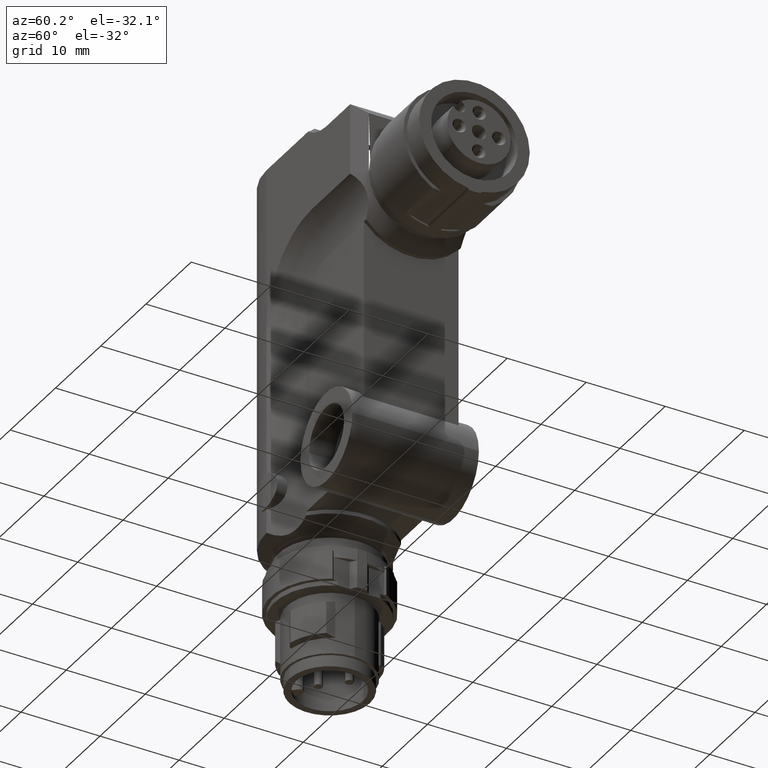
[diagram: clean part render]
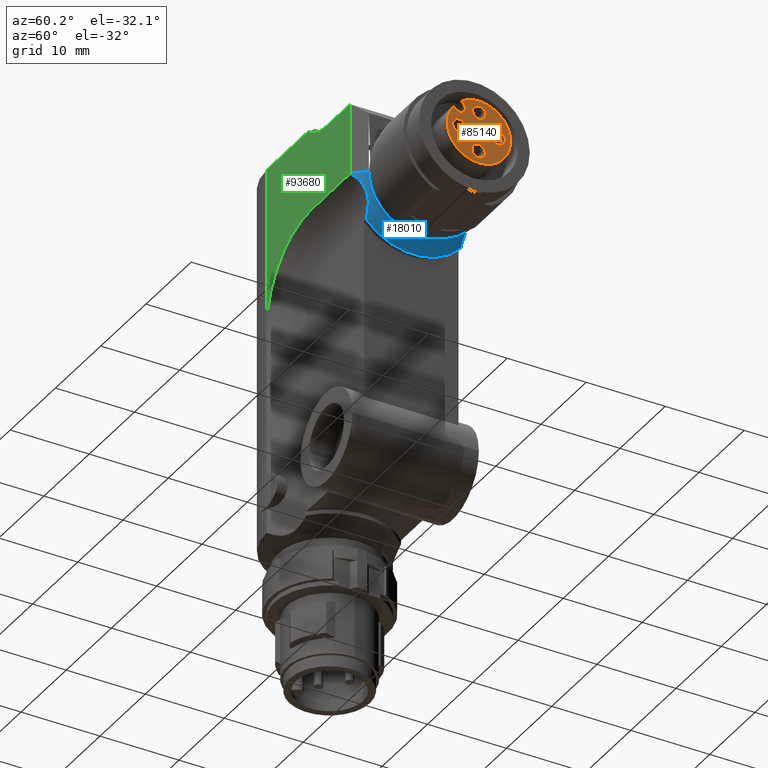
[diagram: same view with three faces highlighted in distinct colors, each labeled with its STEP entity id]
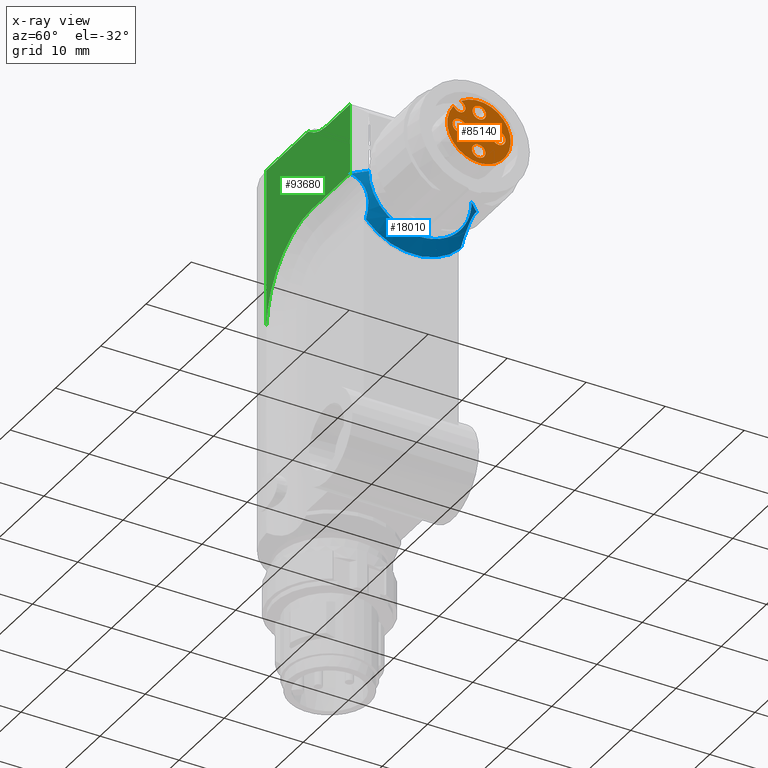
[diagram: x-ray of the same camera — body ghosted, the three highlighted faces saturated]
A machine part, auxiliary view with three faces highlighted in distinct colors.
The next image is the same camera in x-ray (body ghosted, the three faces saturated) — at least one of them is partly hidden behind the body in this view.
Their STEP definitions:

[orange] entity #85140 — the highlighted planar face has unit normal (1, -0, -0).
#82730=CARTESIAN_POINT('',(1.92776643641617,32.9999999999985,
41.003950160495));
#82740=VERTEX_POINT('',#82730);
#82980=CARTESIAN_POINT('',(2.24552655974507,32.9999999999982,
41.3330004007117));
#82990=VERTEX_POINT('',#82980);
#83020=CARTESIAN_POINT('',(3.94517739876556,32.999999999997,
43.093040367355));
#83030=DIRECTION('',(-0.6946583704635,5.0383896522233E-13,
-0.719339800334303));
#83040=VECTOR('',#83030,1.);
#83050=LINE('',#83020,#83040);
#83060=EDGE_CURVE('',#82990,#82740,#83050,.T.);
#83400=CARTESIAN_POINT('',(3.2526022802131,32.9999999999975,
40.3604786820628));
#83410=VERTEX_POINT('',#83400);
#83440=CARTESIAN_POINT('',(2.79634093658387E-11,32.9999999999999,
38.0000000000005));
#83450=DIRECTION('',(-7.28965052842945E-13,-1.,-5.66198368905591E-16));
#83460=DIRECTION('',(-0.719339800334304,5.23980261126426E-13,
0.6946583704635));
#83470=AXIS2_PLACEMENT_3D('',#83440,#83450,#83460);
#83480=CIRCLE('',#83470,4.01886566104621);
#83490=EDGE_CURVE('',#82990,#83410,#83480,.T.);
#83700=CARTESIAN_POINT('',(2.93484215688419,32.9999999999977,
40.0314284418461));
#83710=VERTEX_POINT('',#83700);
#83760=CARTESIAN_POINT('',(2.43130429665018,32.9999999999981,
40.5176893011705));
#83770=DIRECTION('',(7.41733090964806E-13,1.,1.91421756213362E-14));
#83780=DIRECTION('',(0.999847695156501,-7.41954198451386E-13,
0.0174524064310232));
#83790=AXIS2_PLACEMENT_3D('',#83760,#83770,#83780);
#83800=CIRCLE('',#83790,0.700000000000001);
#83810=EDGE_CURVE('',#83710,#82740,#83800,.T.);
#83960=CARTESIAN_POINT('',(5.21283952837381,32.9999999999961,
42.3903637747292));
#83970=DIRECTION('',(0.6946583704635,-5.0383896522233E-13,
0.719339800334303));
#83980=VECTOR('',#83970,1.);
#83990=LINE('',#83960,#83980);
#84000=EDGE_CURVE('',#83710,#83410,#83990,.T.);
#84120=CARTESIAN_POINT('',(-1.58034189747345,33.000000000001,
41.072514766537));
#84130=DIRECTION('',(7.27038060898792E-13,1.,-1.67141992154315E-15));
#84140=DIRECTION('',(-0.719339800334304,5.24148479401436E-13,
0.6946583704635));
#84150=AXIS2_PLACEMENT_3D('',#84120,#84130,#84140);
#84160=PLANE('',#84150);
#84170=CARTESIAN_POINT('',(-0.000210267655247343,32.9999999999999,
37.9999641214065));
#84180=DIRECTION('',(7.27038060898793E-13,1.,-1.67141992154315E-15));
#84190=DIRECTION('',(0.999847695156501,-7.26898159180922E-13,
0.0174524064310245));
#84200=AXIS2_PLACEMENT_3D('',#84170,#84180,#84190);
#84210=CIRCLE('',#84200,0.9);
#84220=CARTESIAN_POINT('',(0.899652657985603,32.9999999999992,
38.0156712871944));
#84230=VERTEX_POINT('',#84220);
#84240=CARTESIAN_POINT('',(-0.900073193296098,33.0000000000005,
37.9842569556186));
#84250=VERTEX_POINT('',#84240);
#84260=EDGE_CURVE('',#84230,#84250,#84210,.T.);
#84270=ORIENTED_EDGE('',*,*,#84260,.F.);
#84280=EDGE_CURVE('',#84250,#84230,#84210,.T.);
#84290=ORIENTED_EDGE('',*,*,#84280,.F.);
#84300=EDGE_LOOP('',(#84290,#84270));
#84310=FACE_BOUND('',#84300,.T.);
#84320=CARTESIAN_POINT('',(-0.0438412837402522,32.9999999999999,
40.4995833592978));
#84330=DIRECTION('',(-7.27038060898793E-13,-1.,1.67141992154315E-15));
#84340=DIRECTION('',(-0.484809620246341,3.51013189406693E-13,
-0.874619707139394));
#84350=AXIS2_PLACEMENT_3D('',#84320,#84330,#84340);
#84360=CIRCLE('',#84350,0.849999999999999);
#84370=CARTESIAN_POINT('',(0.368246893469139,32.9999999999996,
41.2430101103663));
#84380=VERTEX_POINT('',#84370);
#84390=CARTESIAN_POINT('',(-0.455929460949643,33.0000000000002,
39.7561566082294));
#84400=VERTEX_POINT('',#84390);
#84410=EDGE_CURVE('',#84380,#84400,#84360,.T.);
#84420=ORIENTED_EDGE('',*,*,#84410,.T.);
#84430=CARTESIAN_POINT('',(0.806029257142676,32.9999999999993,
40.5144179047695));
#84440=VERTEX_POINT('',#84430);
#84450=EDGE_CURVE('',#84440,#84380,#84360,.T.);
#84460=ORIENTED_EDGE('',*,*,#84450,.T.);
#84470=EDGE_CURVE('',#84400,#84440,#84360,.T.);
#84480=ORIENTED_EDGE('',*,*,#84470,.T.);
#84490=EDGE_LOOP('',(#84480,#84460,#84420));
#84500=FACE_BOUND('',#84490,.T.);
#84510=CARTESIAN_POINT('',(-2.49982950553819,33.0000000000017,
37.956333105331));
#84520=DIRECTION('',(-7.27038060898793E-13,-1.,1.67141992154315E-15));
#84530=DIRECTION('',(-0.484809620246341,3.51013189406693E-13,
-0.874619707139394));
#84540=AXIS2_PLACEMENT_3D('',#84510,#84520,#84530);
#84550=CIRCLE('',#84540,0.850000000000001);
#84560=CARTESIAN_POINT('',(-3.24325625660668,33.0000000000022,
38.3684212825404));
#84570=VERTEX_POINT('',#84560);
#84580=CARTESIAN_POINT('',(-1.7564027544697,33.0000000000011,
37.5442449281216));
#84590=VERTEX_POINT('',#84580);
#84600=EDGE_CURVE('',#84570,#84590,#84550,.T.);
#84610=ORIENTED_EDGE('',*,*,#84600,.T.);
#84620=CARTESIAN_POINT('',(-1.64995896465526,33.0000000000011,
37.9711676508027));
#84630=VERTEX_POINT('',#84620);
#84640=EDGE_CURVE('',#84630,#84570,#84550,.T.);
#84650=ORIENTED_EDGE('',*,*,#84640,.T.);
#84660=EDGE_CURVE('',#84590,#84630,#84550,.T.);
#84670=ORIENTED_EDGE('',*,*,#84660,.T.);
#84680=EDGE_LOOP('',(#84670,#84650,#84610));
#84690=FACE_BOUND('',#84680,.T.);
#84700=CARTESIAN_POINT('',(2.4994089702395,32.999999999998,
38.0435951375182));
#84710=DIRECTION('',(-7.27038060898793E-13,-1.,1.67141992154315E-15));
#84720=DIRECTION('',(-0.484809620246341,3.51013189406693E-13,
-0.874619707139394));
#84730=AXIS2_PLACEMENT_3D('',#84700,#84710,#84720);
#84740=CIRCLE('',#84730,0.849999999999999);
#84750=CARTESIAN_POINT('',(2.91149714744889,32.9999999999977,
38.7870218885867));
#84760=VERTEX_POINT('',#84750);
#84770=CARTESIAN_POINT('',(2.08732079303011,32.9999999999983,
37.3001683864497));
#84780=VERTEX_POINT('',#84770);
#84790=EDGE_CURVE('',#84760,#84780,#84740,.T.);
#84800=ORIENTED_EDGE('',*,*,#84790,.T.);
#84810=CARTESIAN_POINT('',(3.34927951112243,32.9999999999974,
38.0584296829899));
#84820=VERTEX_POINT('',#84810);
#84830=EDGE_CURVE('',#84820,#84760,#84740,.T.);
#84840=ORIENTED_EDGE('',*,*,#84830,.T.);
#84850=EDGE_CURVE('',#84780,#84820,#84740,.T.);
#84860=ORIENTED_EDGE('',*,*,#84850,.T.);
#84870=EDGE_LOOP('',(#84860,#84840,#84800));
#84880=FACE_BOUND('',#84870,.T.);
#84890=CARTESIAN_POINT('',(0.0434207484463629,32.9999999999998,
35.5003448835334));
#84900=DIRECTION('',(-7.27038060898793E-13,-1.,1.67141992154315E-15));
#84910=DIRECTION('',(-0.484809620246341,3.51013189406693E-13,
-0.874619707139394));
#84920=AXIS2_PLACEMENT_3D('',#84890,#84900,#84910);
#84930=CIRCLE('',#84920,0.850000000000001);
#84940=CARTESIAN_POINT('',(-0.700006002622123,33.0000000000004,
35.9124330607428));
#84950=VERTEX_POINT('',#84940);
#84960=CARTESIAN_POINT('',(0.786847499514852,32.9999999999993,
35.088256706324));
#84970=VERTEX_POINT('',#84960);
#84980=EDGE_CURVE('',#84950,#84970,#84930,.T.);
#84990=ORIENTED_EDGE('',*,*,#84980,.T.);
#85000=CARTESIAN_POINT('',(0.89329128932928,32.9999999999992,
35.5151794290051));
#85010=VERTEX_POINT('',#85000);
#85020=EDGE_CURVE('',#85010,#84950,#84930,.T.);
#85030=ORIENTED_EDGE('',*,*,#85020,.T.);
#85040=EDGE_CURVE('',#84970,#85010,#84930,.T.);
#85050=ORIENTED_EDGE('',*,*,#85040,.T.);
#85060=EDGE_LOOP('',(#85050,#85030,#84990));
#85070=FACE_BOUND('',#85060,.T.);
#85080=ORIENTED_EDGE('',*,*,#83490,.F.);
#85090=ORIENTED_EDGE('',*,*,#84000,.T.);
#85100=ORIENTED_EDGE('',*,*,#83810,.F.);
#85110=ORIENTED_EDGE('',*,*,#83060,.T.);
#85120=EDGE_LOOP('',(#85110,#85100,#85090,#85080));
#85130=FACE_OUTER_BOUND('',#85120,.T.);
#85140=ADVANCED_FACE('',(#84310,#84500,#84690,#84880,#85070,#85130),
#84160,.T.);

[blue] entity #18010 — the highlighted conical surface has half-angle 45 deg.
#9630=CARTESIAN_POINT('',(7.99999999999999,18.5,37.9999984046267));
#9640=CARTESIAN_POINT('',(7.50000000000003,19.,37.9999989364178));
#9650=CARTESIAN_POINT('',(7.00000000000009,19.5,37.999999468209));
#9660=CARTESIAN_POINT('',(6.50000000000013,20.,38.0000000000001));
#9670=B_SPLINE_CURVE_WITH_KNOTS('',3,(#9630,#9640,#9650,#9660),
.UNSPECIFIED.,.F.,.F.,(4,4),(0.,2.12132034356013),.UNSPECIFIED.);
#9680=CARTESIAN_POINT('',(7.99999859336715,18.5000014066329,
37.9999984050278));
#9690=VERTEX_POINT('',#9680);
#9700=CARTESIAN_POINT('',(6.50000000000016,20.,38.0000000000001));
#9710=VERTEX_POINT('',#9700);
#9720=EDGE_CURVE('',#9690,#9710,#9670,.T.);
#15370=CARTESIAN_POINT('',(-0.0387963689851006,20.,31.5001157824346));
#15380=VERTEX_POINT('',#15370);
#15410=CARTESIAN_POINT('',(-2.79776202205539E-14,20.,38.0000000000001));
#15420=DIRECTION('',(0.,1.,0.));
#15430=DIRECTION('',(1.,0.,0.));
#15440=AXIS2_PLACEMENT_3D('',#15410,#15420,#15430);
#15450=CIRCLE('',#15440,6.50000000000019);
#15460=EDGE_CURVE('',#9710,#15380,#15450,.T.);
#15940=CARTESIAN_POINT('',(-2.79776202205539E-14,18.5,38.0000000000001))
;
#15950=DIRECTION('',(0.,-1.,0.));
#15960=DIRECTION('',(-1.,0.,0.));
#15970=AXIS2_PLACEMENT_3D('',#15940,#15950,#15960);
#15980=CONICAL_SURFACE('',#15970,8.00000000000019,0.785398163397446);
#15990=CARTESIAN_POINT('',(-7.99999999999999,18.5,37.9999984046267));
#16000=CARTESIAN_POINT('',(-7.50000000000003,19.,37.9999989364178));
#16010=CARTESIAN_POINT('',(-7.00000000000009,19.5,37.999999468209));
#16020=CARTESIAN_POINT('',(-6.50000000000013,20.,38.0000000000001));
#16030=B_SPLINE_CURVE_WITH_KNOTS('',3,(#15990,#16000,#16010,#16020),
.UNSPECIFIED.,.F.,.F.,(4,4),(0.,2.12132034356013),.UNSPECIFIED.);
#16040=CARTESIAN_POINT('',(-7.99999859336713,18.5000014066328,
37.9999984050278));
#16050=VERTEX_POINT('',#16040);
#16060=CARTESIAN_POINT('',(-6.50000000000025,20.,38.0000000000001));
#16070=VERTEX_POINT('',#16060);
#16080=EDGE_CURVE('',#16050,#16070,#16030,.T.);
#16090=ORIENTED_EDGE('',*,*,#16080,.T.);
#16100=CARTESIAN_POINT('',(2.79776202205539E-14,18.5,38.0000000000001));
#16110=DIRECTION('',(0.,-1.,0.));
#16120=DIRECTION('',(1.,0.,0.));
#16130=AXIS2_PLACEMENT_3D('',#16100,#16110,#16120);
#16140=CONICAL_SURFACE('',#16130,8.00000000000019,0.785398163397446);
#16150=CARTESIAN_POINT('',(-14.0000000000001,20.,32.7084973778708));
#16160=DIRECTION('',(0.,1.,0.));
#16170=DIRECTION('',(0.,0.,1.));
#16180=AXIS2_PLACEMENT_3D('',#16150,#16160,#16170);
#16190=CYLINDRICAL_SURFACE('',#16180,8.00000000000009);
#16200=CARTESIAN_POINT('',(-5.99999999999996,18.5,32.7084973778706));
#16210=CARTESIAN_POINT('',(-5.99999999999996,18.5714493408275,
32.8165186276814));
#16220=CARTESIAN_POINT('',(-6.0021889720516,18.6411769465298,
32.9262736845923));
#16230=CARTESIAN_POINT('',(-6.00677089526938,18.7085294848601,
33.0375695269314));
#16240=CARTESIAN_POINT('',(-6.01135282209607,18.7758820762399,
33.1488654569313));
#16250=CARTESIAN_POINT('',(-6.01832737454154,18.8408603146523,
33.2617032516133));
#16260=CARTESIAN_POINT('',(-6.02788860111193,18.902786847561,
33.3759101764586));
#16270=CARTESIAN_POINT('',(-6.03744982874106,18.964713387327,
33.4901171139504));
#16280=CARTESIAN_POINT('',(-6.04959752579692,19.0235889693471,
33.6056950091979));
#16290=CARTESIAN_POINT('',(-6.06452112521964,19.0787107837863,
33.7224870365531));
#16300=CARTESIAN_POINT('',(-6.07944471184251,19.1338325509479,
33.8392789637366));
#16310=CARTESIAN_POINT('',(-6.09714421990201,19.1852008294304,
33.9572872568992));
#16320=CARTESIAN_POINT('',(-6.11780816648881,19.2320899245847,
34.0763613695489));
#16330=CARTESIAN_POINT('',(-6.1281409748359,19.2555363670037,
34.1359032377947));
#16340=CARTESIAN_POINT('',(-6.13921093131087,19.2778551462465,
34.1956908060053));
#16350=CARTESIAN_POINT('',(-6.15105326643681,19.2989753041726,
34.2557643792923));
#16360=CARTESIAN_POINT('',(-6.16289862063636,19.3201008464517,
34.3158532676788));
#16370=CARTESIAN_POINT('',(-6.17552804090742,19.3400435548115,
34.3762803716618));
#16380=CARTESIAN_POINT('',(-6.18895412942939,19.358680109334,
34.4369540327632));
#16390=CARTESIAN_POINT('',(-6.20238021018781,19.37731665308,
34.4976276587805));
#16400=CARTESIAN_POINT('',(-6.21660279624114,19.3946465154964,
34.5585468605852));
#16410=CARTESIAN_POINT('',(-6.23162651443677,19.4105594882244,
34.6196157386214));
#16420=CARTESIAN_POINT('',(-6.24665025098471,19.4264724803909,
34.6806846912567));
#16430=CARTESIAN_POINT('',(-6.26247483240855,19.4409680610936,
34.7419020213869));
#16440=CARTESIAN_POINT('',(-6.27909700041064,19.4539531733856,
34.8031708299733));
#16450=CARTESIAN_POINT('',(-6.2957187606876,19.4669379671659,
34.8644381356973));
#16460=CARTESIAN_POINT('',(-6.31313328415602,19.4784117321749,
34.9257435902121));
#16470=CARTESIAN_POINT('',(-6.33137272206272,19.4883182711279,
34.9871275962425));
#16480=CARTESIAN_POINT('',(-6.34960871853724,19.4982229409069,
35.0485000202881));
#16490=CARTESIAN_POINT('',(-6.3686536812867,19.5065485453529,
35.1098931906529));
#16500=CARTESIAN_POINT('',(-6.38848092045468,19.5132308123999,
35.1711742348128));
#16510=CARTESIAN_POINT('',(-6.40830965437956,19.5199135832167,
35.2324598988929));
#16520=CARTESIAN_POINT('',(-6.42894084247873,19.5249591129044,
35.2936949569237));
#16530=CARTESIAN_POINT('',(-6.45033510840105,19.5283242004416,
35.3547324438765));
#16540=CARTESIAN_POINT('',(-6.47172618693533,19.5316887866369,
35.4157608372639));
#16550=CARTESIAN_POINT('',(-6.49389289285028,19.5333757540502,
35.4766286354332));
#16560=CARTESIAN_POINT('',(-6.5167932497905,19.5333704403711,
35.5372102890053));
#16570=CARTESIAN_POINT('',(-6.53968990516133,19.533365127551,
35.5977821502761));
#16580=CARTESIAN_POINT('',(-6.56333005615067,19.5316679450744,
35.6580944552051));
#16590=CARTESIAN_POINT('',(-6.5876599072674,19.5282925390286,
35.718017995788));
#16600=CARTESIAN_POINT('',(-6.61198656408435,19.5249175761447,
35.7779336689264));
#16610=CARTESIAN_POINT('',(-6.63701810516557,19.519862685734,
35.8374984566278));
#16620=CARTESIAN_POINT('',(-6.66269078185908,19.5131688714316,
35.8965835494453));
#16630=CARTESIAN_POINT('',(-6.68835935929203,19.5064761259578,
35.955659207906));
#16640=CARTESIAN_POINT('',(-6.71467834178696,19.4981436089631,
36.0142785027242));
#16650=CARTESIAN_POINT('',(-6.74160419211325,19.4882273913278,
36.0723776218828));
#16660=CARTESIAN_POINT('',(-6.76852811078675,19.4783118850791,
36.1304725730271));
#16670=CARTESIAN_POINT('',(-6.79604985881537,19.4668155726103,
36.1880271198175));
#16680=CARTESIAN_POINT('',(-6.82409459348144,19.4538290633079,
36.2449336627058));
#16690=CARTESIAN_POINT('',(-6.85213869061053,19.4408428492261,
36.3018389119457));
#16700=CARTESIAN_POINT('',(-6.88074807107649,19.4263475540022,
36.3581828354169));
#16710=CARTESIAN_POINT('',(-6.90986541632887,19.4104329778546,
36.413897705154));
#16720=CARTESIAN_POINT('',(-6.9389827030333,19.3945184337074,
36.469612462862));
#16730=CARTESIAN_POINT('',(-6.96860734920602,19.3771850825536,
36.5246970465447));
#16740=CARTESIAN_POINT('',(-6.99867660327346,19.3585389798986,
36.5790878618215));
#16750=CARTESIAN_POINT('',(-7.02874585276423,19.3398928800816,
36.6334786688197));
#16760=CARTESIAN_POINT('',(-7.05925921748089,19.3199345115386,
36.6871748991247));
#16770=CARTESIAN_POINT('',(-7.09015044800666,19.2987826340558,
36.7401197769622));
#16780=CARTESIAN_POINT('',(-7.121047716537,19.2776266222239,
36.7930750034136));
#16790=CARTESIAN_POINT('',(-7.15229576829609,19.2552969333562,
36.8452342574757));
#16800=CARTESIAN_POINT('',(-7.18390392356054,19.23186399518,
36.8966752963415));
#16810=CARTESIAN_POINT('',(-7.24713125116519,19.1849899512374,
36.9995753039337));
#16820=CARTESIAN_POINT('',(-7.3118576134856,19.1336567069888,
37.0996917480109));
#16830=CARTESIAN_POINT('',(-7.37785576648486,19.0785805719868,
37.1970612629595));
#16840=CARTESIAN_POINT('',(-7.44385406833094,19.0235043127706,
37.2944309975072));
#16850=CARTESIAN_POINT('',(-7.51112619224866,18.9646842797685,
37.3890562824095));
#16860=CARTESIAN_POINT('',(-7.57944441047193,18.9028049342525,
37.4809669609881));
#16870=CARTESIAN_POINT('',(-7.64776265388963,18.8409255659167,
37.5728776734616));
#16880=CARTESIAN_POINT('',(-7.71712873863645,18.7759856575714,
37.6620754502897));
#16890=CARTESIAN_POINT('',(-7.78730349440589,18.7086388055578,
37.7485769535699));
#16900=CARTESIAN_POINT('',(-7.85747819030448,18.6412920110023,
37.8350783830497));
#16910=CARTESIAN_POINT('',(-7.92846275542024,18.5715372284055,
37.9188843456791));
#16920=CARTESIAN_POINT('',(-7.99999859301403,18.5000014069876,
37.9999984046279));
#16930=B_SPLINE_CURVE_WITH_KNOTS('',3,(#16200,#16210,#16220,#16230,
#16240,#16250,#16260,#16270,#16280,#16290,#16300,#16310,#16320,#16330,
#16340,#16350,#16360,#16370,#16380,#16390,#16400,#16410,#16420,#16430,
#16440,#16450,#16460,#16470,#16480,#16490,#16500,#16510,#16520,#16530,
#16540,#16550,#16560,#16570,#16580,#16590,#16600,#16610,#16620,#16630,
#16640,#16650,#16660,#16670,#16680,#16690,#16700,#16710,#16720,#16730,
#16740,#16750,#16760,#16770,#16780,#16790,#16800,#16810,#16820,#16830,
#16840,#16850,#16860,#16870,#16880,#16890,#16900,#16910,#16920),
.UNSPECIFIED.,.F.,.F.,(4,3,3,3,3,3,3,3,3,3,3,3,3,3,3,3,3,3,3,3,3,3,3,3,4
),(0.,0.389685716820624,0.780458460909038,1.17092994858571,
1.56037966745842,1.7547255098787,1.94924441131206,2.14388587282413,
2.33840400629358,2.53273073554968,2.7270625195362,2.92137543959998,
3.11567081107734,3.30996356038954,3.50426784593773,3.6985939968194,
3.8929456776934,4.08736032633098,4.281977368909,4.47659583619128,
4.67097543067238,5.06010772295076,5.45023407287883,5.84083357983416,
6.23072803032288),.UNSPECIFIED.);
#16940=SURFACE_CURVE('',#16930,(#16140,#16190),.CURVE_3D.);
#16950=CARTESIAN_POINT('',(-6.,18.5000000000108,32.7084973778706));
#16960=VERTEX_POINT('',#16950);
#16970=EDGE_CURVE('',#16960,#16050,#16940,.T.);
#16980=ORIENTED_EDGE('',*,*,#16970,.T.);
#16990=CARTESIAN_POINT('',(-2.79776202205539E-14,18.5,38.0000000000001))
;
#17000=DIRECTION('',(0.,1.,0.));
#17010=DIRECTION('',(-1.,0.,0.));
#17020=AXIS2_PLACEMENT_3D('',#16990,#17000,#17010);
#17030=CIRCLE('',#17020,8.00000000000019);
#17040=CARTESIAN_POINT('',(6.,18.5000000000108,32.7084973778707));
#17050=VERTEX_POINT('',#17040);
#17060=EDGE_CURVE('',#17050,#16960,#17030,.T.);
#17070=ORIENTED_EDGE('',*,*,#17060,.T.);
#17080=CARTESIAN_POINT('',(14.0000000000001,20.,32.7084973778708));
#17090=DIRECTION('',(0.,1.,0.));
#17100=DIRECTION('',(0.,0.,1.));
#17110=AXIS2_PLACEMENT_3D('',#17080,#17090,#17100);
#17120=CYLINDRICAL_SURFACE('',#17110,8.00000000000009);
#17130=CARTESIAN_POINT('',(5.99999999999996,18.5,32.7084973778706));
#17140=CARTESIAN_POINT('',(5.99999999999996,18.5714493408275,
32.8165186276814));
#17150=CARTESIAN_POINT('',(6.0021889720516,18.6411769465298,
32.9262736845923));
#17160=CARTESIAN_POINT('',(6.00677089526938,18.7085294848601,
33.0375695269314));
#17170=CARTESIAN_POINT('',(6.01135282209607,18.7758820762399,
33.1488654569313));
#17180=CARTESIAN_POINT('',(6.01832737454154,18.8408603146523,
33.2617032516133));
#17190=CARTESIAN_POINT('',(6.02788860111193,18.902786847561,
33.3759101764586));
#17200=CARTESIAN_POINT('',(6.03744982874106,18.964713387327,
33.4901171139504));
#17210=CARTESIAN_POINT('',(6.04959752579692,19.0235889693471,
33.6056950091979));
#17220=CARTESIAN_POINT('',(6.06452112521964,19.0787107837863,
33.7224870365531));
#17230=CARTESIAN_POINT('',(6.07944471184251,19.1338325509479,
33.8392789637366));
#17240=CARTESIAN_POINT('',(6.09714421990201,19.1852008294304,
33.9572872568992));
#17250=CARTESIAN_POINT('',(6.11780816648881,19.2320899245847,
34.0763613695489));
#17260=CARTESIAN_POINT('',(6.1281409748359,19.2555363670037,
34.1359032377947));
#17270=CARTESIAN_POINT('',(6.13921093131087,19.2778551462465,
34.1956908060053));
#17280=CARTESIAN_POINT('',(6.15105326643681,19.2989753041726,
34.2557643792923));
#17290=CARTESIAN_POINT('',(6.16289862063636,19.3201008464517,
34.3158532676788));
#17300=CARTESIAN_POINT('',(6.17552804090742,19.3400435548115,
34.3762803716618));
#17310=CARTESIAN_POINT('',(6.18895412942939,19.358680109334,
34.4369540327632));
#17320=CARTESIAN_POINT('',(6.20238021018781,19.37731665308,
34.4976276587805));
#17330=CARTESIAN_POINT('',(6.21660279624114,19.3946465154964,
34.5585468605852));
#17340=CARTESIAN_POINT('',(6.23162651443677,19.4105594882244,
34.6196157386214));
#17350=CARTESIAN_POINT('',(6.24665025098471,19.4264724803909,
34.6806846912567));
#17360=CARTESIAN_POINT('',(6.26247483240855,19.4409680610936,
34.7419020213869));
#17370=CARTESIAN_POINT('',(6.27909700041064,19.4539531733856,
34.8031708299733));
#17380=CARTESIAN_POINT('',(6.2957187606876,19.4669379671659,
34.8644381356973));
#17390=CARTESIAN_POINT('',(6.31313328415602,19.4784117321749,
34.9257435902121));
#17400=CARTESIAN_POINT('',(6.33137272206272,19.4883182711279,
34.9871275962425));
#17410=CARTESIAN_POINT('',(6.34960871853724,19.4982229409069,
35.0485000202881));
#17420=CARTESIAN_POINT('',(6.3686536812867,19.5065485453529,
35.1098931906529));
#17430=CARTESIAN_POINT('',(6.38848092045468,19.5132308123999,
35.1711742348128));
#17440=CARTESIAN_POINT('',(6.40830965437956,19.5199135832167,
35.2324598988929));
#17450=CARTESIAN_POINT('',(6.42894084247873,19.5249591129044,
35.2936949569237));
#17460=CARTESIAN_POINT('',(6.45033510840105,19.5283242004416,
35.3547324438765));
#17470=CARTESIAN_POINT('',(6.47172618693533,19.5316887866369,
35.4157608372639));
#17480=CARTESIAN_POINT('',(6.49389289285028,19.5333757540502,
35.4766286354332));
#17490=CARTESIAN_POINT('',(6.5167932497905,19.5333704403711,
35.5372102890053));
#17500=CARTESIAN_POINT('',(6.53968990516133,19.533365127551,
35.5977821502761));
#17510=CARTESIAN_POINT('',(6.56333005615067,19.5316679450744,
35.6580944552051));
#17520=CARTESIAN_POINT('',(6.5876599072674,19.5282925390286,
35.718017995788));
#17530=CARTESIAN_POINT('',(6.61198656408435,19.5249175761447,
35.7779336689264));
#17540=CARTESIAN_POINT('',(6.63701810516557,19.519862685734,
35.8374984566278));
#17550=CARTESIAN_POINT('',(6.66269078185908,19.5131688714316,
35.8965835494453));
#17560=CARTESIAN_POINT('',(6.68835935929203,19.5064761259578,
35.955659207906));
#17570=CARTESIAN_POINT('',(6.71467834178696,19.4981436089631,
36.0142785027242));
#17580=CARTESIAN_POINT('',(6.74160419211325,19.4882273913278,
36.0723776218828));
#17590=CARTESIAN_POINT('',(6.76852811078675,19.4783118850791,
36.1304725730271));
#17600=CARTESIAN_POINT('',(6.79604985881537,19.4668155726103,
36.1880271198175));
#17610=CARTESIAN_POINT('',(6.82409459348144,19.4538290633079,
36.2449336627058));
#17620=CARTESIAN_POINT('',(6.85213869061053,19.4408428492261,
36.3018389119457));
#17630=CARTESIAN_POINT('',(6.88074807107649,19.4263475540022,
36.3581828354169));
#17640=CARTESIAN_POINT('',(6.90986541632887,19.4104329778546,
36.413897705154));
#17650=CARTESIAN_POINT('',(6.9389827030333,19.3945184337074,
36.469612462862));
#17660=CARTESIAN_POINT('',(6.96860734920602,19.3771850825536,
36.5246970465447));
#17670=CARTESIAN_POINT('',(6.99867660327346,19.3585389798986,
36.5790878618215));
#17680=CARTESIAN_POINT('',(7.02874585276423,19.3398928800816,
36.6334786688197));
#17690=CARTESIAN_POINT('',(7.05925921748089,19.3199345115386,
36.6871748991247));
#17700=CARTESIAN_POINT('',(7.09015044800666,19.2987826340558,
36.7401197769622));
#17710=CARTESIAN_POINT('',(7.121047716537,19.2776266222239,
36.7930750034136));
#17720=CARTESIAN_POINT('',(7.15229576829609,19.2552969333562,
36.8452342574757));
#17730=CARTESIAN_POINT('',(7.18390392356054,19.23186399518,
36.8966752963415));
#17740=CARTESIAN_POINT('',(7.24713125116519,19.1849899512374,
36.9995753039337));
#17750=CARTESIAN_POINT('',(7.3118576134856,19.1336567069888,
37.0996917480109));
#17760=CARTESIAN_POINT('',(7.37785576648486,19.0785805719868,
37.1970612629595));
#17770=CARTESIAN_POINT('',(7.44385406833094,19.0235043127706,
37.2944309975072));
#17780=CARTESIAN_POINT('',(7.51112619224866,18.9646842797685,
37.3890562824095));
#17790=CARTESIAN_POINT('',(7.57944441047193,18.9028049342525,
37.4809669609881));
#17800=CARTESIAN_POINT('',(7.64776265388963,18.8409255659167,
37.5728776734616));
#17810=CARTESIAN_POINT('',(7.71712873863645,18.7759856575714,
37.6620754502897));
#17820=CARTESIAN_POINT('',(7.78730349440589,18.7086388055578,
37.7485769535699));
#17830=CARTESIAN_POINT('',(7.85747819030448,18.6412920110023,
37.8350783830497));
#17840=CARTESIAN_POINT('',(7.92846275542024,18.5715372284055,
37.9188843456791));
#17850=CARTESIAN_POINT('',(7.99999859301403,18.5000014069876,
37.9999984046279));
#17860=B_SPLINE_CURVE_WITH_KNOTS('',3,(#17130,#17140,#17150,#17160,
#17170,#17180,#17190,#17200,#17210,#17220,#17230,#17240,#17250,#17260,
#17270,#17280,#17290,#17300,#17310,#17320,#17330,#17340,#17350,#17360,
#17370,#17380,#17390,#17400,#17410,#17420,#17430,#17440,#17450,#17460,
#17470,#17480,#17490,#17500,#17510,#17520,#17530,#17540,#17550,#17560,
#17570,#17580,#17590,#17600,#17610,#17620,#17630,#17640,#17650,#17660,
#17670,#17680,#17690,#17700,#17710,#17720,#17730,#17740,#17750,#17760,
#17770,#17780,#17790,#17800,#17810,#17820,#17830,#17840,#17850),
.UNSPECIFIED.,.F.,.F.,(4,3,3,3,3,3,3,3,3,3,3,3,3,3,3,3,3,3,3,3,3,3,3,3,4
),(0.,0.389685716820624,0.780458460909038,1.17092994858571,
1.56037966745842,1.7547255098787,1.94924441131206,2.14388587282413,
2.33840400629358,2.53273073554968,2.7270625195362,2.92137543959998,
3.11567081107734,3.30996356038954,3.50426784593773,3.6985939968194,
3.8929456776934,4.08736032633098,4.281977368909,4.47659583619128,
4.67097543067238,5.06010772295076,5.45023407287883,5.84083357983416,
6.23072803032288),.UNSPECIFIED.);
#17870=SURFACE_CURVE('',#17860,(#15980,#17120),.CURVE_3D.);
#17880=EDGE_CURVE('',#17050,#9690,#17870,.T.);
#17890=ORIENTED_EDGE('',*,*,#17880,.F.);
#17900=ORIENTED_EDGE('',*,*,#9720,.F.);
#17910=ORIENTED_EDGE('',*,*,#15460,.F.);
#17920=CARTESIAN_POINT('',(-2.79776202205539E-14,20.,38.0000000000001));
#17930=DIRECTION('',(0.,-1.,0.));
#17940=DIRECTION('',(-1.,0.,0.));
#17950=AXIS2_PLACEMENT_3D('',#17920,#17930,#17940);
#17960=CIRCLE('',#17950,6.50000000000022);
#17970=EDGE_CURVE('',#16070,#15380,#17960,.T.);
#17980=ORIENTED_EDGE('',*,*,#17970,.T.);
#17990=EDGE_LOOP('',(#17980,#17910,#17900,#17890,#17070,#16980,#16090));
#18000=FACE_OUTER_BOUND('',#17990,.T.);
#18010=ADVANCED_FACE('',(#18000),#15980,.T.);

[green] entity #93680 — the highlighted planar face has unit normal (0, -1, 0).
#4860=CARTESIAN_POINT('',(8.,3.5527136788005E-15,0.));
#4870=DIRECTION('',(0.,0.,-1.));
#4880=VECTOR('',#4870,1.);
#4890=LINE('',#4860,#4880);
#4900=CARTESIAN_POINT('',(8.,5.28330100839187E-15,48.5));
#4910=VERTEX_POINT('',#4900);
#4920=CARTESIAN_POINT('',(8.,1.95399252334028E-14,28.0000000000002));
#4930=VERTEX_POINT('',#4920);
#4940=EDGE_CURVE('',#4910,#4930,#4890,.T.);
#9790=CARTESIAN_POINT('',(8.,18.5,38.));
#9800=VERTEX_POINT('',#9790);
#9830=CARTESIAN_POINT('',(8.,18.5,0.));
#9840=DIRECTION('',(0.,0.,-1.));
#9850=VECTOR('',#9840,1.);
#9860=LINE('',#9830,#9850);
#9870=CARTESIAN_POINT('',(8.,18.5,47.));
#9880=VERTEX_POINT('',#9870);
#9890=EDGE_CURVE('',#9880,#9800,#9860,.T.);
#18730=CARTESIAN_POINT('',(8.,13.1961524227066,47.));
#18740=VERTEX_POINT('',#18730);
#18860=CARTESIAN_POINT('',(8.,0.,47.));
#18870=DIRECTION('',(0.,-1.,0.));
#18880=VECTOR('',#18870,1.);
#18890=LINE('',#18860,#18880);
#18900=EDGE_CURVE('',#9880,#18740,#18890,.T.);
#19180=CARTESIAN_POINT('',(8.,13.1961524227066,53.));
#19190=DIRECTION('',(-1.,0.,0.));
#19200=DIRECTION('',(0.,1.,0.));
#19210=AXIS2_PLACEMENT_3D('',#19180,#19190,#19200);
#19220=CIRCLE('',#19210,5.99999999999996);
#19230=CARTESIAN_POINT('',(8.,9.2275254561098,48.5));
#19240=VERTEX_POINT('',#19230);
#19250=EDGE_CURVE('',#18740,#19240,#19220,.T.);
#23710=CARTESIAN_POINT('',(8.,20.,38.));
#23720=DIRECTION('',(0.,1.,0.));
#23730=VECTOR('',#23720,1.);
#23740=LINE('',#23710,#23730);
#23750=CARTESIAN_POINT('',(8.,10.0002770649337,38.));
#23760=VERTEX_POINT('',#23750);
#23770=EDGE_CURVE('',#23760,#9800,#23740,.T.);
#25030=CARTESIAN_POINT('',(8.,10.,28.));
#25040=DIRECTION('',(1.,4.93038065763133E-31,2.52970265222012E-16));
#25050=DIRECTION('',(7.62657342238343E-31,-1.,-1.06581410364015E-15));
#25060=AXIS2_PLACEMENT_3D('',#25030,#25040,#25050);
#25070=CIRCLE('',#25060,9.99999999999999);
#25080=EDGE_CURVE('',#23760,#4930,#25070,.T.);
#78660=CARTESIAN_POINT('',(8.,0.,48.5));
#78670=DIRECTION('',(0.,-1.,0.));
#78680=VECTOR('',#78670,1.);
#78690=LINE('',#78660,#78680);
#78700=EDGE_CURVE('',#19240,#4910,#78690,.T.);
#93540=CARTESIAN_POINT('',(8.,7.46028462077985,13.0533067988253));
#93550=DIRECTION('',(1.,0.,0.));
#93560=DIRECTION('',(0.,-1.,0.));
#93570=AXIS2_PLACEMENT_3D('',#93540,#93550,#93560);
#93580=PLANE('',#93570);
#93590=ORIENTED_EDGE('',*,*,#4940,.T.);
#93600=ORIENTED_EDGE('',*,*,#78700,.T.);
#93610=ORIENTED_EDGE('',*,*,#19250,.T.);
#93620=ORIENTED_EDGE('',*,*,#18900,.T.);
#93630=ORIENTED_EDGE('',*,*,#9890,.F.);
#93640=ORIENTED_EDGE('',*,*,#23770,.T.);
#93650=ORIENTED_EDGE('',*,*,#25080,.F.);
#93660=EDGE_LOOP('',(#93650,#93640,#93630,#93620,#93610,#93600,#93590));
#93670=FACE_OUTER_BOUND('',#93660,.T.);
#93680=ADVANCED_FACE('',(#93670),#93580,.T.);